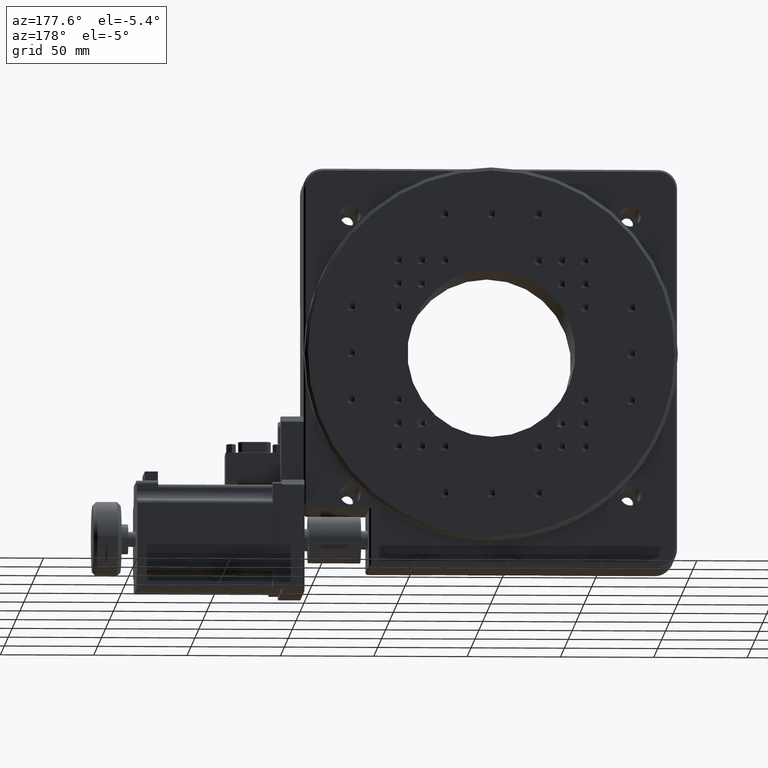
[diagram: clean part render]
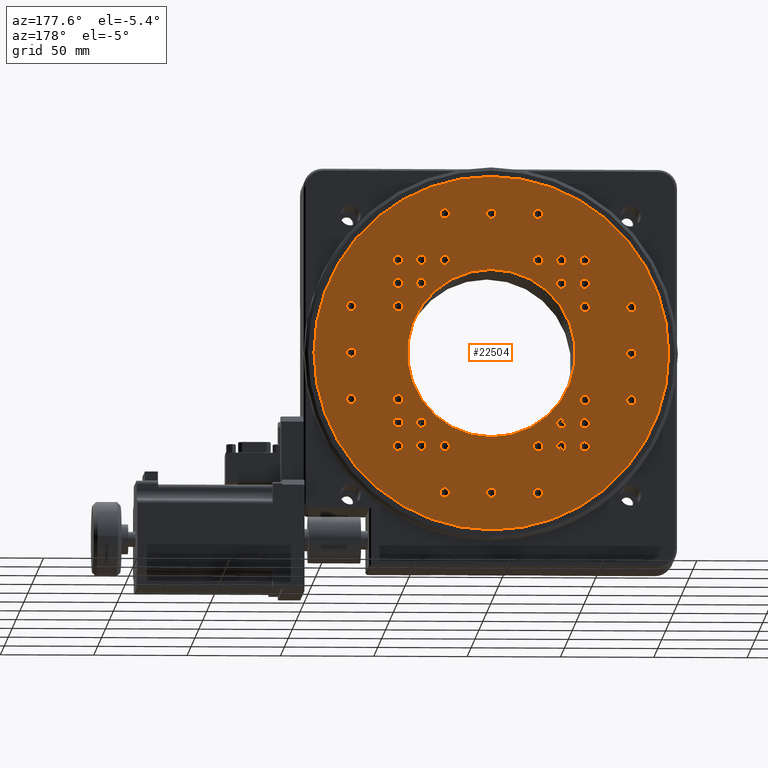
[diagram: same view with one face highlighted and labeled with its STEP entity id]
A machine part, auxiliary view. The second image highlights one B-rep face of the part: STEP entity #22504.
In plain terms, the highlighted planar face has unit normal (-0, 1, -0).
Its self-contained STEP definition (entity closure, byte-faithful):
#27 = VERTEX_POINT ( 'NONE', #10201 ) ;
#114 = FACE_BOUND ( 'NONE', #29979, .T. ) ;
#132 = CARTESIAN_POINT ( 'NONE',  ( 150.0000000000000900, 59.99999999999997200, -150.0000000000000600 ) ) ;
#315 = DIRECTION ( 'NONE',  ( 0.0000000000000000000, 0.0000000000000000000, -1.000000000000000000 ) ) ;
#460 = CARTESIAN_POINT ( 'NONE',  ( 25.00000000000005000, 59.99999999999997200, -75.00000000000007100 ) ) ;
#487 = VERTEX_POINT ( 'NONE', #12632 ) ;
#595 = DIRECTION ( 'NONE',  ( 8.326672684688670400E-017, -1.000000000000000000, 2.048408217643522700E-016 ) ) ;
#694 = FACE_BOUND ( 'NONE', #26537, .T. ) ;
#707 = EDGE_CURVE ( 'NONE', #1870, #5307, #31343, .T. ) ;
#868 = CARTESIAN_POINT ( 'NONE',  ( 137.5000000000000300, 59.99999999999997900, -62.50000000000005700 ) ) ;
#946 = CARTESIAN_POINT ( 'NONE',  ( 75.00000000000004300, 59.99999999999998600, -25.00000000000006400 ) ) ;
#1007 = CARTESIAN_POINT ( 'NONE',  ( 150.0000000000000900, 59.99999999999997200, -127.5000000000000600 ) ) ;
#1073 = EDGE_CURVE ( 'NONE', #18876, #41597, #29513, .T. ) ;
#1112 = DIRECTION ( 'NONE',  ( 0.0000000000000000000, 0.0000000000000000000, -1.000000000000000000 ) ) ;
#1115 = DIRECTION ( 'NONE',  ( 8.326672684688670400E-017, -1.000000000000000000, 2.048408217643522700E-016 ) ) ;
#1179 = DIRECTION ( 'NONE',  ( 0.0000000000000000000, 0.0000000000000000000, -1.000000000000000000 ) ) ;
#1256 = DIRECTION ( 'NONE',  ( 0.0000000000000000000, 0.0000000000000000000, -1.000000000000000000 ) ) ;
#1283 = AXIS2_PLACEMENT_3D ( 'NONE', #48091, #20101, #8062 ) ;
#1315 = DIRECTION ( 'NONE',  ( 0.0000000000000000000, 0.0000000000000000000, -1.000000000000000000 ) ) ;
#1393 = CIRCLE ( 'NONE', #46232, 2.499999999999988500 ) ;
#1416 = VERTEX_POINT ( 'NONE', #12682 ) ;
#1455 = CARTESIAN_POINT ( 'NONE',  ( 75.00000000000004300, 59.99999999999998600, -27.50000000000005300 ) ) ;
#1468 = CARTESIAN_POINT ( 'NONE',  ( 125.0000000000000300, 59.99999999999995700, -175.0000000000000600 ) ) ;
#1561 = CARTESIAN_POINT ( 'NONE',  ( 175.0000000000000600, 59.99999999999997200, -125.0000000000000900 ) ) ;
#1608 = DIRECTION ( 'NONE',  ( 8.326672684688670400E-017, -1.000000000000000000, 2.048408217643522700E-016 ) ) ;
#1707 = ORIENTED_EDGE ( 'NONE', *, *, #15279, .T. ) ;
#1749 = CARTESIAN_POINT ( 'NONE',  ( 62.50000000000005700, 59.99999999999996400, -137.5000000000000600 ) ) ;
#1821 = DIRECTION ( 'NONE',  ( 8.326672684688670400E-017, -1.000000000000000000, 2.048408217643522700E-016 ) ) ;
#1822 = CIRCLE ( 'NONE', #30817, 45.00000000000001400 ) ;
#1847 = CARTESIAN_POINT ( 'NONE',  ( 175.0000000000000600, 59.99999999999997900, -100.0000000000000400 ) ) ;
#1870 = VERTEX_POINT ( 'NONE', #32206 ) ;
#1895 = ORIENTED_EDGE ( 'NONE', *, *, #50249, .T. ) ;
#2007 = ORIENTED_EDGE ( 'NONE', *, *, #40438, .T. ) ;
#2102 = DIRECTION ( 'NONE',  ( 0.0000000000000000000, 0.0000000000000000000, -1.000000000000000000 ) ) ;
#2141 = ORIENTED_EDGE ( 'NONE', *, *, #14230, .T. ) ;
#2194 = EDGE_CURVE ( 'NONE', #14804, #47680, #41267, .T. ) ;
#2316 = VERTEX_POINT ( 'NONE', #20983 ) ;
#2548 = CARTESIAN_POINT ( 'NONE',  ( 50.00000000000002100, 59.99999999999997200, -65.00000000000005700 ) ) ;
#2588 = FACE_BOUND ( 'NONE', #29673, .T. ) ;
#2655 = DIRECTION ( 'NONE',  ( 8.326672684688670400E-017, -1.000000000000000000, 2.048408217643522700E-016 ) ) ;
#2713 = CARTESIAN_POINT ( 'NONE',  ( 137.5000000000000900, 59.99999999999996400, -147.5000000000000900 ) ) ;
#2817 = EDGE_LOOP ( 'NONE', ( #46381, #15376 ) ) ;
#2873 = ORIENTED_EDGE ( 'NONE', *, *, #18021, .T. ) ;
#3032 = EDGE_CURVE ( 'NONE', #32918, #39165, #24908, .T. ) ;
#3070 = DIRECTION ( 'NONE',  ( 8.326672684688670400E-017, -1.000000000000000000, 2.048408217643522700E-016 ) ) ;
#3094 = ORIENTED_EDGE ( 'NONE', *, *, #30990, .T. ) ;
#3100 = AXIS2_PLACEMENT_3D ( 'NONE', #32145, #595, #16226 ) ;
#3190 = EDGE_CURVE ( 'NONE', #49689, #48317, #11137, .T. ) ;
#3206 = VERTEX_POINT ( 'NONE', #18562 ) ;
#3233 = CIRCLE ( 'NONE', #27802, 2.500000000000002200 ) ;
#3295 = DIRECTION ( 'NONE',  ( 0.0000000000000000000, 0.0000000000000000000, -1.000000000000000000 ) ) ;
#3301 = DIRECTION ( 'NONE',  ( 0.0000000000000000000, 0.0000000000000000000, -1.000000000000000000 ) ) ;
#3357 = CARTESIAN_POINT ( 'NONE',  ( 50.00000000000001400, 59.99999999999997200, -50.00000000000005000 ) ) ;
#3516 = CIRCLE ( 'NONE', #35666, 2.500000000000002200 ) ;
#3585 = CARTESIAN_POINT ( 'NONE',  ( 50.00000000000015600, 59.99999999999995700, -150.0000000000000900 ) ) ;
#3642 = AXIS2_PLACEMENT_3D ( 'NONE', #28793, #8355, #4566 ) ;
#3687 = VERTEX_POINT ( 'NONE', #1007 ) ;
#3804 = EDGE_CURVE ( 'NONE', #39165, #32918, #50870, .T. ) ;
#3821 = EDGE_CURVE ( 'NONE', #34266, #17908, #26675, .T. ) ;
#3835 = FACE_BOUND ( 'NONE', #23537, .T. ) ;
#3933 = AXIS2_PLACEMENT_3D ( 'NONE', #28499, #12425, #15908 ) ;
#4110 = ORIENTED_EDGE ( 'NONE', *, *, #47889, .T. ) ;
#4167 = AXIS2_PLACEMENT_3D ( 'NONE', #460, #20426, #48252 ) ;
#4276 = CARTESIAN_POINT ( 'NONE',  ( 137.5000000000000900, 59.99999999999996400, -150.0000000000000600 ) ) ;
#4289 = ORIENTED_EDGE ( 'NONE', *, *, #13362, .T. ) ;
#4309 = CARTESIAN_POINT ( 'NONE',  ( 75.00000000000004300, 59.99999999999997900, -50.00000000000006400 ) ) ;
#4342 = EDGE_LOOP ( 'NONE', ( #41613, #33739 ) ) ;
#4376 = AXIS2_PLACEMENT_3D ( 'NONE', #47507, #23364, #31407 ) ;
#4419 = FACE_BOUND ( 'NONE', #24743, .T. ) ;
#4425 = CARTESIAN_POINT ( 'NONE',  ( 75.00000000000011400, 59.99999999999996400, -150.0000000000000900 ) ) ;
#4564 = VERTEX_POINT ( 'NONE', #43846 ) ;
#4566 = DIRECTION ( 'NONE',  ( 0.0000000000000000000, 0.0000000000000000000, -1.000000000000000000 ) ) ;
#4623 = CIRCLE ( 'NONE', #16437, 2.499999999999988500 ) ;
#4706 = VERTEX_POINT ( 'NONE', #6818 ) ;
#4760 = ORIENTED_EDGE ( 'NONE', *, *, #33659, .T. ) ;
#4931 = CIRCLE ( 'NONE', #27197, 2.500000000000002200 ) ;
#5058 = VERTEX_POINT ( 'NONE', #49157 ) ;
#5123 = ORIENTED_EDGE ( 'NONE', *, *, #2194, .T. ) ;
#5164 = CIRCLE ( 'NONE', #9060, 2.499999999999988500 ) ;
#5307 = VERTEX_POINT ( 'NONE', #45809 ) ;
#5416 = ORIENTED_EDGE ( 'NONE', *, *, #13058, .T. ) ;
#5547 = ORIENTED_EDGE ( 'NONE', *, *, #6528, .T. ) ;
#5561 = CIRCLE ( 'NONE', #45875, 2.500000000000002200 ) ;
#5580 = DIRECTION ( 'NONE',  ( 0.0000000000000000000, 0.0000000000000000000, -1.000000000000000000 ) ) ;
#5880 = AXIS2_PLACEMENT_3D ( 'NONE', #45282, #44942, #40938 ) ;
#5933 = CARTESIAN_POINT ( 'NONE',  ( 50.00000000000002100, 59.99999999999997200, -62.50000000000005700 ) ) ;
#5952 = ORIENTED_EDGE ( 'NONE', *, *, #29107, .T. ) ;
#5954 = AXIS2_PLACEMENT_3D ( 'NONE', #32478, #16372, #24927 ) ;
#6052 = CIRCLE ( 'NONE', #38659, 2.500000000000002200 ) ;
#6065 = CIRCLE ( 'NONE', #29901, 2.499999999999988500 ) ;
#6249 = ORIENTED_EDGE ( 'NONE', *, *, #46469, .T. ) ;
#6474 = VERTEX_POINT ( 'NONE', #8603 ) ;
#6528 = EDGE_CURVE ( 'NONE', #17518, #50133, #49369, .T. ) ;
#6582 = AXIS2_PLACEMENT_3D ( 'NONE', #46650, #30218, #50490 ) ;
#6587 = CARTESIAN_POINT ( 'NONE',  ( 75.00000000000004300, 59.99999999999997900, -47.50000000000007800 ) ) ;
#6588 = DIRECTION ( 'NONE',  ( 8.326672684688670400E-017, -1.000000000000000000, 2.048408217643522700E-016 ) ) ;
#6659 = CIRCLE ( 'NONE', #48434, 2.499999999999988500 ) ;
#6669 = AXIS2_PLACEMENT_3D ( 'NONE', #44723, #45410, #5580 ) ;
#6818 = CARTESIAN_POINT ( 'NONE',  ( 125.0000000000000300, 59.99999999999998600, -27.50000000000003900 ) ) ;
#6820 = VERTEX_POINT ( 'NONE', #18495 ) ;
#6859 = DIRECTION ( 'NONE',  ( 0.0000000000000000000, 0.0000000000000000000, -1.000000000000000000 ) ) ;
#6985 = CARTESIAN_POINT ( 'NONE',  ( 25.00000000000005000, 59.99999999999996400, -100.0000000000000600 ) ) ;
#6989 = ORIENTED_EDGE ( 'NONE', *, *, #49303, .T. ) ;
#7106 = EDGE_LOOP ( 'NONE', ( #50989, #49406 ) ) ;
#7109 = CARTESIAN_POINT ( 'NONE',  ( 62.50000000000002800, 59.99999999999997900, -47.50000000000006400 ) ) ;
#7114 = CARTESIAN_POINT ( 'NONE',  ( 62.50000000000002800, 59.99999999999997900, -50.00000000000005000 ) ) ;
#7152 = AXIS2_PLACEMENT_3D ( 'NONE', #34054, #1821, #30054 ) ;
#7173 = DIRECTION ( 'NONE',  ( 8.326672684688670400E-017, -1.000000000000000000, 2.048408217643522700E-016 ) ) ;
#7349 = DIRECTION ( 'NONE',  ( 8.326672684688670400E-017, -1.000000000000000000, 2.048408217643522700E-016 ) ) ;
#7390 = ORIENTED_EDGE ( 'NONE', *, *, #12680, .T. ) ;
#7410 = CARTESIAN_POINT ( 'NONE',  ( 137.5000000000000300, 59.99999999999997900, -50.00000000000005000 ) ) ;
#7419 = AXIS2_PLACEMENT_3D ( 'NONE', #12890, #32131, #40232 ) ;
#7458 = VERTEX_POINT ( 'NONE', #28399 ) ;
#7653 = DIRECTION ( 'NONE',  ( 2.340531700754225500E-016, -2.048408217643522400E-016, -1.000000000000000000 ) ) ;
#7738 = ORIENTED_EDGE ( 'NONE', *, *, #19357, .T. ) ;
#8062 = DIRECTION ( 'NONE',  ( 0.0000000000000000000, 0.0000000000000000000, -1.000000000000000000 ) ) ;
#8102 = VERTEX_POINT ( 'NONE', #40987 ) ;
#8125 = FACE_BOUND ( 'NONE', #13989, .T. ) ;
#8199 = ORIENTED_EDGE ( 'NONE', *, *, #49104, .T. ) ;
#8274 = VERTEX_POINT ( 'NONE', #2713 ) ;
#8299 = AXIS2_PLACEMENT_3D ( 'NONE', #32196, #40112, #28160 ) ;
#8355 = DIRECTION ( 'NONE',  ( 8.326672684688670400E-017, -1.000000000000000000, 2.048408217643522700E-016 ) ) ;
#8375 = CARTESIAN_POINT ( 'NONE',  ( 25.00000000000005000, 59.99999999999997200, -75.00000000000007100 ) ) ;
#8603 = CARTESIAN_POINT ( 'NONE',  ( 62.50000000000005700, 59.99999999999996400, -140.0000000000000600 ) ) ;
#8631 = VERTEX_POINT ( 'NONE', #1455 ) ;
#8662 = DIRECTION ( 'NONE',  ( 0.0000000000000000000, 0.0000000000000000000, -1.000000000000000000 ) ) ;
#8722 = EDGE_CURVE ( 'NONE', #20731, #35275, #17965, .T. ) ;
#8724 = EDGE_LOOP ( 'NONE', ( #6989, #37477 ) ) ;
#8854 = AXIS2_PLACEMENT_3D ( 'NONE', #24420, #28100, #40070 ) ;
#8864 = AXIS2_PLACEMENT_3D ( 'NONE', #22617, #14428, #42087 ) ;
#8946 = CARTESIAN_POINT ( 'NONE',  ( 125.0000000000000600, 59.99999999999997900, -50.00000000000005000 ) ) ;
#8996 = CARTESIAN_POINT ( 'NONE',  ( 50.00000000000002100, 59.99999999999997200, -77.50000000000005700 ) ) ;
#9060 = AXIS2_PLACEMENT_3D ( 'NONE', #8946, #12933, #44596 ) ;
#9082 = DIRECTION ( 'NONE',  ( 0.0000000000000000000, 0.0000000000000000000, -1.000000000000000000 ) ) ;
#9217 = DIRECTION ( 'NONE',  ( 0.0000000000000000000, 0.0000000000000000000, -1.000000000000000000 ) ) ;
#9274 = CARTESIAN_POINT ( 'NONE',  ( 100.0000000000000700, 59.99999999999995700, -172.5000000000000300 ) ) ;
#9554 = CARTESIAN_POINT ( 'NONE',  ( 125.0000000000000300, 59.99999999999998600, -22.50000000000006000 ) ) ;
#9726 = EDGE_CURVE ( 'NONE', #42272, #8102, #33439, .T. ) ;
#9994 = FACE_BOUND ( 'NONE', #19949, .T. ) ;
#10027 = DIRECTION ( 'NONE',  ( 0.0000000000000000000, 0.0000000000000000000, -1.000000000000000000 ) ) ;
#10111 = DIRECTION ( 'NONE',  ( 0.0000000000000000000, 0.0000000000000000000, -1.000000000000000000 ) ) ;
#10201 = CARTESIAN_POINT ( 'NONE',  ( 175.0000000000000600, 59.99999999999997900, -102.5000000000000300 ) ) ;
#10578 = ORIENTED_EDGE ( 'NONE', *, *, #45013, .T. ) ;
#10601 = CARTESIAN_POINT ( 'NONE',  ( 150.0000000000000900, 59.99999999999997200, -137.5000000000000300 ) ) ;
#10630 = CIRCLE ( 'NONE', #32352, 2.499999999999988500 ) ;
#10650 = FACE_BOUND ( 'NONE', #2817, .T. ) ;
#10668 = DIRECTION ( 'NONE',  ( 0.0000000000000000000, 0.0000000000000000000, -1.000000000000000000 ) ) ;
#10706 = DIRECTION ( 'NONE',  ( 0.0000000000000000000, 0.0000000000000000000, -1.000000000000000000 ) ) ;
#10736 = AXIS2_PLACEMENT_3D ( 'NONE', #1847, #48809, #1179 ) ;
#10897 = AXIS2_PLACEMENT_3D ( 'NONE', #39121, #35200, #14952 ) ;
#11014 = DIRECTION ( 'NONE',  ( 0.0000000000000000000, 0.0000000000000000000, -1.000000000000000000 ) ) ;
#11137 = CIRCLE ( 'NONE', #14638, 2.499999999999988500 ) ;
#11166 = VERTEX_POINT ( 'NONE', #44445 ) ;
#11169 = ORIENTED_EDGE ( 'NONE', *, *, #50645, .T. ) ;
#11244 = FACE_BOUND ( 'NONE', #8724, .T. ) ;
#11341 = CIRCLE ( 'NONE', #19066, 2.500000000000002200 ) ;
#11423 = DIRECTION ( 'NONE',  ( 0.0000000000000000000, 0.0000000000000000000, -1.000000000000000000 ) ) ;
#11432 = AXIS2_PLACEMENT_3D ( 'NONE', #30809, #38916, #50390 ) ;
#11528 = CARTESIAN_POINT ( 'NONE',  ( 62.50000000000004300, 59.99999999999997900, -60.00000000000006400 ) ) ;
#11707 = ORIENTED_EDGE ( 'NONE', *, *, #29997, .T. ) ;
#11755 = EDGE_CURVE ( 'NONE', #8631, #16365, #6659, .T. ) ;
#11875 = FACE_BOUND ( 'NONE', #26963, .T. ) ;
#11950 = CARTESIAN_POINT ( 'NONE',  ( 75.00000000000011400, 59.99999999999996400, -147.5000000000000900 ) ) ;
#12234 = DIRECTION ( 'NONE',  ( 0.0000000000000000000, 0.0000000000000000000, -1.000000000000000000 ) ) ;
#12314 = AXIS2_PLACEMENT_3D ( 'NONE', #6985, #46794, #19664 ) ;
#12329 = EDGE_LOOP ( 'NONE', ( #25077, #24467 ) ) ;
#12424 = CIRCLE ( 'NONE', #51379, 2.500000000000002200 ) ;
#12425 = DIRECTION ( 'NONE',  ( 8.326672684688670400E-017, -1.000000000000000000, 2.048408217643522700E-016 ) ) ;
#12481 = DIRECTION ( 'NONE',  ( 0.0000000000000000000, 0.0000000000000000000, -1.000000000000000000 ) ) ;
#12511 = AXIS2_PLACEMENT_3D ( 'NONE', #28736, #21008, #8662 ) ;
#12600 = AXIS2_PLACEMENT_3D ( 'NONE', #4425, #48240, #12234 ) ;
#12632 = CARTESIAN_POINT ( 'NONE',  ( 75.00000000000007100, 59.99999999999995700, -177.5000000000000600 ) ) ;
#12633 = CARTESIAN_POINT ( 'NONE',  ( 62.50000000000016300, 59.99999999999996400, -152.5000000000000900 ) ) ;
#12647 = DIRECTION ( 'NONE',  ( 8.326672684688670400E-017, -1.000000000000000000, 2.048408217643522700E-016 ) ) ;
#12674 = ORIENTED_EDGE ( 'NONE', *, *, #29730, .T. ) ;
#12680 = EDGE_CURVE ( 'NONE', #39328, #20410, #24494, .T. ) ;
#12682 = CARTESIAN_POINT ( 'NONE',  ( 150.0000000000000600, 59.99999999999998600, -65.00000000000005700 ) ) ;
#12694 = ORIENTED_EDGE ( 'NONE', *, *, #41345, .T. ) ;
#12887 = DIRECTION ( 'NONE',  ( 0.0000000000000000000, 0.0000000000000000000, -1.000000000000000000 ) ) ;
#12890 = CARTESIAN_POINT ( 'NONE',  ( 75.00000000000004300, 59.99999999999998600, -25.00000000000006400 ) ) ;
#12911 = ORIENTED_EDGE ( 'NONE', *, *, #43636, .T. ) ;
#12933 = DIRECTION ( 'NONE',  ( 8.326672684688670400E-017, -1.000000000000000000, 2.048408217643522700E-016 ) ) ;
#13032 = EDGE_LOOP ( 'NONE', ( #45474, #18529 ) ) ;
#13058 = EDGE_CURVE ( 'NONE', #28069, #35577, #41062, .T. ) ;
#13130 = FACE_BOUND ( 'NONE', #36166, .T. ) ;
#13232 = CARTESIAN_POINT ( 'NONE',  ( 75.00000000000011400, 59.99999999999996400, -152.5000000000000900 ) ) ;
#13362 = EDGE_CURVE ( 'NONE', #16178, #35660, #23551, .T. ) ;
#13367 = CARTESIAN_POINT ( 'NONE',  ( 62.50000000000004300, 59.99999999999997900, -62.50000000000005700 ) ) ;
#13717 = DIRECTION ( 'NONE',  ( 8.326672684688670400E-017, -1.000000000000000000, 2.048408217643522700E-016 ) ) ;
#13812 = AXIS2_PLACEMENT_3D ( 'NONE', #33630, #13717, #41564 ) ;
#13850 = DIRECTION ( 'NONE',  ( 8.326672684688670400E-017, -1.000000000000000000, 2.048408217643522700E-016 ) ) ;
#13922 = AXIS2_PLACEMENT_3D ( 'NONE', #41773, #2655, #46461 ) ;
#13989 = EDGE_LOOP ( 'NONE', ( #46768, #19293 ) ) ;
#13992 = VERTEX_POINT ( 'NONE', #38529 ) ;
#14054 = CIRCLE ( 'NONE', #35240, 2.499999999999988500 ) ;
#14190 = DIRECTION ( 'NONE',  ( 8.326672684688670400E-017, -1.000000000000000000, 2.048408217643522700E-016 ) ) ;
#14230 = EDGE_CURVE ( 'NONE', #44208, #30179, #30896, .T. ) ;
#14238 = CARTESIAN_POINT ( 'NONE',  ( 25.00000000000005000, 59.99999999999996400, -102.5000000000000600 ) ) ;
#14275 = VERTEX_POINT ( 'NONE', #47896 ) ;
#14299 = CARTESIAN_POINT ( 'NONE',  ( 25.00000000000005000, 59.99999999999997200, -77.50000000000007100 ) ) ;
#14337 = VERTEX_POINT ( 'NONE', #9274 ) ;
#14377 = CARTESIAN_POINT ( 'NONE',  ( 50.00000000000001400, 59.99999999999997200, -50.00000000000005000 ) ) ;
#14388 = FACE_BOUND ( 'NONE', #32138, .T. ) ;
#14428 = DIRECTION ( 'NONE',  ( 8.326672684688670400E-017, -1.000000000000000000, 2.048408217643522700E-016 ) ) ;
#14533 = CIRCLE ( 'NONE', #41558, 2.499999999999988500 ) ;
#14553 = CIRCLE ( 'NONE', #50979, 2.499999999999974200 ) ;
#14619 = ORIENTED_EDGE ( 'NONE', *, *, #3190, .T. ) ;
#14632 = DIRECTION ( 'NONE',  ( 0.0000000000000000000, 0.0000000000000000000, -1.000000000000000000 ) ) ;
#14638 = AXIS2_PLACEMENT_3D ( 'NONE', #15270, #51091, #11423 ) ;
#14804 = VERTEX_POINT ( 'NONE', #36874 ) ;
#14810 = AXIS2_PLACEMENT_3D ( 'NONE', #48567, #1115, #12887 ) ;
#14859 = CARTESIAN_POINT ( 'NONE',  ( 125.0000000000001100, 59.99999999999996400, -150.0000000000000600 ) ) ;
#14952 = DIRECTION ( 'NONE',  ( 0.0000000000000000000, 0.0000000000000000000, -1.000000000000000000 ) ) ;
#14988 = FACE_BOUND ( 'NONE', #18062, .T. ) ;
#14998 = DIRECTION ( 'NONE',  ( 0.0000000000000000000, 0.0000000000000000000, -1.000000000000000000 ) ) ;
#15013 = CIRCLE ( 'NONE', #29320, 2.500000000000002200 ) ;
#15062 = ORIENTED_EDGE ( 'NONE', *, *, #3821, .T. ) ;
#15194 = DIRECTION ( 'NONE',  ( 0.0000000000000000000, 0.0000000000000000000, -1.000000000000000000 ) ) ;
#15270 = CARTESIAN_POINT ( 'NONE',  ( 125.0000000000000600, 59.99999999999997900, -50.00000000000005000 ) ) ;
#15279 = EDGE_CURVE ( 'NONE', #48317, #49689, #5164, .T. ) ;
#15376 = ORIENTED_EDGE ( 'NONE', *, *, #1073, .T. ) ;
#15838 = CARTESIAN_POINT ( 'NONE',  ( 125.0000000000000300, 59.99999999999998600, -25.00000000000005000 ) ) ;
#15882 = DIRECTION ( 'NONE',  ( 0.0000000000000000000, 0.0000000000000000000, -1.000000000000000000 ) ) ;
#15883 = EDGE_CURVE ( 'NONE', #6474, #31154, #29962, .T. ) ;
#15908 = DIRECTION ( 'NONE',  ( 0.0000000000000000000, 0.0000000000000000000, -1.000000000000000000 ) ) ;
#16178 = VERTEX_POINT ( 'NONE', #19283 ) ;
#16214 = DIRECTION ( 'NONE',  ( 0.0000000000000000000, 0.0000000000000000000, -1.000000000000000000 ) ) ;
#16226 = DIRECTION ( 'NONE',  ( 0.0000000000000000000, 0.0000000000000000000, -1.000000000000000000 ) ) ;
#16365 = VERTEX_POINT ( 'NONE', #25207 ) ;
#16369 = CARTESIAN_POINT ( 'NONE',  ( 150.0000000000000900, 59.99999999999997200, -147.5000000000000900 ) ) ;
#16372 = DIRECTION ( 'NONE',  ( 8.326672684688670400E-017, -1.000000000000000000, 2.048408217643522700E-016 ) ) ;
#16430 = DIRECTION ( 'NONE',  ( 8.326672684688670400E-017, -1.000000000000000000, 2.048408217643522700E-016 ) ) ;
#16437 = AXIS2_PLACEMENT_3D ( 'NONE', #15838, #47681, #24030 ) ;
#16447 = EDGE_LOOP ( 'NONE', ( #26996, #44947 ) ) ;
#16537 = DIRECTION ( 'NONE',  ( 3.083952846180989300E-016, -1.541976423090494600E-016, -1.000000000000000000 ) ) ;
#16740 = VERTEX_POINT ( 'NONE', #28325 ) ;
#16744 = CIRCLE ( 'NONE', #35677, 2.499999999999974200 ) ;
#16922 = EDGE_CURVE ( 'NONE', #11166, #39212, #28455, .T. ) ;
#17064 = CARTESIAN_POINT ( 'NONE',  ( 50.00000000000014900, 59.99999999999995700, -125.0000000000000900 ) ) ;
#17127 = CARTESIAN_POINT ( 'NONE',  ( 25.00000000000005000, 59.99999999999997200, -72.50000000000007100 ) ) ;
#17128 = VERTEX_POINT ( 'NONE', #19171 ) ;
#17248 = DIRECTION ( 'NONE',  ( 0.0000000000000000000, 0.0000000000000000000, -1.000000000000000000 ) ) ;
#17353 = DIRECTION ( 'NONE',  ( 8.326672684688670400E-017, -1.000000000000000000, 2.048408217643522700E-016 ) ) ;
#17518 = VERTEX_POINT ( 'NONE', #43792 ) ;
#17581 = CIRCLE ( 'NONE', #18398, 2.500000000000002200 ) ;
#17674 = CARTESIAN_POINT ( 'NONE',  ( 75.00000000000007100, 59.99999999999995700, -175.0000000000000600 ) ) ;
#17783 = CIRCLE ( 'NONE', #8854, 2.500000000000002200 ) ;
#17852 = VERTEX_POINT ( 'NONE', #22715 ) ;
#17908 = VERTEX_POINT ( 'NONE', #19034 ) ;
#17965 = CIRCLE ( 'NONE', #13922, 2.499999999999988500 ) ;
#17966 = DIRECTION ( 'NONE',  ( 0.0000000000000000000, 0.0000000000000000000, -1.000000000000000000 ) ) ;
#18002 = VERTEX_POINT ( 'NONE', #23908 ) ;
#18021 = EDGE_CURVE ( 'NONE', #35577, #28069, #15013, .T. ) ;
#18062 = EDGE_LOOP ( 'NONE', ( #28728, #5952 ) ) ;
#18398 = AXIS2_PLACEMENT_3D ( 'NONE', #29859, #26327, #10111 ) ;
#18441 = CIRCLE ( 'NONE', #24672, 2.500000000000002200 ) ;
#18495 = CARTESIAN_POINT ( 'NONE',  ( 137.5000000000000300, 59.99999999999997900, -65.00000000000005700 ) ) ;
#18529 = ORIENTED_EDGE ( 'NONE', *, *, #45280, .T. ) ;
#18562 = CARTESIAN_POINT ( 'NONE',  ( 150.0000000000000900, 59.99999999999997200, -135.0000000000000300 ) ) ;
#18716 = EDGE_LOOP ( 'NONE', ( #20064, #50250 ) ) ;
#18758 = VERTEX_POINT ( 'NONE', #9554 ) ;
#18837 = ORIENTED_EDGE ( 'NONE', *, *, #45479, .T. ) ;
#18858 = AXIS2_PLACEMENT_3D ( 'NONE', #14377, #26429, #46231 ) ;
#18876 = VERTEX_POINT ( 'NONE', #33618 ) ;
#19034 = CARTESIAN_POINT ( 'NONE',  ( 150.0000000000000600, 59.99999999999998600, -77.50000000000002800 ) ) ;
#19066 = AXIS2_PLACEMENT_3D ( 'NONE', #42532, #38690, #6859 ) ;
#19109 = CARTESIAN_POINT ( 'NONE',  ( 175.0000000000000600, 59.99999999999998600, -77.50000000000004300 ) ) ;
#19159 = ORIENTED_EDGE ( 'NONE', *, *, #38465, .T. ) ;
#19171 = CARTESIAN_POINT ( 'NONE',  ( 25.00000000000005000, 59.99999999999995700, -122.5000000000001100 ) ) ;
#19283 = CARTESIAN_POINT ( 'NONE',  ( 50.00000000000002100, 59.99999999999997200, -60.00000000000005700 ) ) ;
#19293 = ORIENTED_EDGE ( 'NONE', *, *, #27910, .T. ) ;
#19357 = EDGE_CURVE ( 'NONE', #33206, #3687, #31325, .T. ) ;
#19400 = EDGE_CURVE ( 'NONE', #35275, #20731, #1393, .T. ) ;
#19546 = VERTEX_POINT ( 'NONE', #32157 ) ;
#19664 = DIRECTION ( 'NONE',  ( 0.0000000000000000000, 0.0000000000000000000, -1.000000000000000000 ) ) ;
#19772 = CIRCLE ( 'NONE', #11432, 2.499999999999988500 ) ;
#19863 = EDGE_LOOP ( 'NONE', ( #6249, #34280 ) ) ;
#19900 = DIRECTION ( 'NONE',  ( 0.0000000000000000000, 0.0000000000000000000, -1.000000000000000000 ) ) ;
#19949 = EDGE_LOOP ( 'NONE', ( #1707, #14619 ) ) ;
#20054 = DIRECTION ( 'NONE',  ( 0.0000000000000000000, 0.0000000000000000000, -1.000000000000000000 ) ) ;
#20064 = ORIENTED_EDGE ( 'NONE', *, *, #19400, .T. ) ;
#20101 = DIRECTION ( 'NONE',  ( 8.326672684688670400E-017, -1.000000000000000000, 2.048408217643522700E-016 ) ) ;
#20266 = VERTEX_POINT ( 'NONE', #11528 ) ;
#20410 = VERTEX_POINT ( 'NONE', #40929 ) ;
#20426 = DIRECTION ( 'NONE',  ( 8.326672684688670400E-017, -1.000000000000000000, 2.048408217643522700E-016 ) ) ;
#20433 = DIRECTION ( 'NONE',  ( 0.0000000000000000000, 0.0000000000000000000, -1.000000000000000000 ) ) ;
#20455 = ORIENTED_EDGE ( 'NONE', *, *, #26541, .T. ) ;
#20576 = CARTESIAN_POINT ( 'NONE',  ( 75.00000000000007100, 59.99999999999995700, -175.0000000000000600 ) ) ;
#20727 = EDGE_LOOP ( 'NONE', ( #38049, #15062 ) ) ;
#20731 = VERTEX_POINT ( 'NONE', #50446 ) ;
#20776 = CARTESIAN_POINT ( 'NONE',  ( 50.00000000000014900, 59.99999999999995700, -137.5000000000000600 ) ) ;
#20896 = EDGE_LOOP ( 'NONE', ( #3094, #46260 ) ) ;
#20983 = CARTESIAN_POINT ( 'NONE',  ( 50.00000000000014900, 59.99999999999995700, -127.5000000000000900 ) ) ;
#21008 = DIRECTION ( 'NONE',  ( 8.326672684688670400E-017, -1.000000000000000000, 2.048408217643522700E-016 ) ) ;
#21081 = CIRCLE ( 'NONE', #26191, 2.499999999999988500 ) ;
#21220 = DIRECTION ( 'NONE',  ( 8.326672684688670400E-017, -1.000000000000000000, 2.048408217643522700E-016 ) ) ;
#21241 = FACE_BOUND ( 'NONE', #34292, .T. ) ;
#21390 = ORIENTED_EDGE ( 'NONE', *, *, #32616, .T. ) ;
#21438 = CARTESIAN_POINT ( 'NONE',  ( 125.0000000000000300, 59.99999999999995700, -177.5000000000000600 ) ) ;
#21478 = EDGE_CURVE ( 'NONE', #17128, #17852, #40818, .T. ) ;
#21504 = AXIS2_PLACEMENT_3D ( 'NONE', #51173, #23382, #51339 ) ;
#21553 = DIRECTION ( 'NONE',  ( 0.0000000000000000000, 0.0000000000000000000, -1.000000000000000000 ) ) ;
#21653 = CARTESIAN_POINT ( 'NONE',  ( 100.0000000000000900, 59.99999999999995000, -195.0000000000000600 ) ) ;
#21705 = DIRECTION ( 'NONE',  ( 8.326672684688670400E-017, -1.000000000000000000, 2.048408217643522700E-016 ) ) ;
#21785 = EDGE_CURVE ( 'NONE', #34309, #14275, #41953, .T. ) ;
#21830 = ORIENTED_EDGE ( 'NONE', *, *, #50427, .T. ) ;
#21845 = FACE_BOUND ( 'NONE', #42322, .T. ) ;
#21908 = CARTESIAN_POINT ( 'NONE',  ( 75.00000000000004300, 59.99999999999997900, -50.00000000000006400 ) ) ;
#21957 = EDGE_CURVE ( 'NONE', #41597, #18876, #17581, .T. ) ;
#22106 = CARTESIAN_POINT ( 'NONE',  ( 137.5000000000000300, 59.99999999999997900, -47.50000000000006400 ) ) ;
#22198 = AXIS2_PLACEMENT_3D ( 'NONE', #1561, #17353, #37236 ) ;
#22309 = DIRECTION ( 'NONE',  ( 8.326672684688670400E-017, -1.000000000000000000, 2.048408217643522700E-016 ) ) ;
#22344 = DIRECTION ( 'NONE',  ( 8.326672684688670400E-017, -1.000000000000000000, 2.048408217643522700E-016 ) ) ;
#22390 = EDGE_CURVE ( 'NONE', #2316, #37903, #3233, .T. ) ;
#22401 = CARTESIAN_POINT ( 'NONE',  ( 75.00000000000007100, 59.99999999999995700, -172.5000000000000300 ) ) ;
#22495 = FACE_BOUND ( 'NONE', #20896, .T. ) ;
#22504 = ADVANCED_FACE ( 'NONE', ( #42411, #114, #2588, #34969, #22495, #30636, #13130, #14388, #40508, #47981, #51072, #35622, #31894, #50482, #39911, #23088, #32507, #21241, #9994, #11875, #43012, #36203, #694, #44900, #44239, #21845, #34393, #28117, #4419, #10650, #8125, #23740, #25006, #3835, #33738, #11244, #14988, #41163 ), #23160, .T. ) ;
#22523 = DIRECTION ( 'NONE',  ( 8.326672684688670400E-017, -1.000000000000000000, 2.048408217643522700E-016 ) ) ;
#22607 = CARTESIAN_POINT ( 'NONE',  ( 175.0000000000000600, 59.99999999999997900, -97.50000000000004300 ) ) ;
#22617 = CARTESIAN_POINT ( 'NONE',  ( 62.50000000000016300, 59.99999999999996400, -150.0000000000000900 ) ) ;
#22715 = CARTESIAN_POINT ( 'NONE',  ( 25.00000000000005000, 59.99999999999995700, -127.5000000000001100 ) ) ;
#22796 = AXIS2_PLACEMENT_3D ( 'NONE', #3357, #7173, #38648 ) ;
#23088 = FACE_BOUND ( 'NONE', #24536, .T. ) ;
#23113 = CARTESIAN_POINT ( 'NONE',  ( 50.00000000000001400, 59.99999999999997200, -47.50000000000006400 ) ) ;
#23128 = CIRCLE ( 'NONE', #37484, 2.500000000000002200 ) ;
#23160 = PLANE ( 'NONE',  #49093 ) ;
#23218 = AXIS2_PLACEMENT_3D ( 'NONE', #38715, #30604, #10706 ) ;
#23364 = DIRECTION ( 'NONE',  ( 8.326672684688670400E-017, -1.000000000000000000, 2.048408217643522700E-016 ) ) ;
#23382 = DIRECTION ( 'NONE',  ( 8.326672684688670400E-017, -1.000000000000000000, 2.048408217643522700E-016 ) ) ;
#23537 = EDGE_LOOP ( 'NONE', ( #2873, #5416 ) ) ;
#23551 = CIRCLE ( 'NONE', #23902, 2.500000000000002200 ) ;
#23641 = DIRECTION ( 'NONE',  ( 8.326672684688670400E-017, -1.000000000000000000, 2.048408217643522700E-016 ) ) ;
#23674 = EDGE_LOOP ( 'NONE', ( #39079, #25949 ) ) ;
#23738 = EDGE_CURVE ( 'NONE', #35660, #16178, #17783, .T. ) ;
#23740 = FACE_BOUND ( 'NONE', #36390, .T. ) ;
#23754 = VERTEX_POINT ( 'NONE', #48054 ) ;
#23839 = CARTESIAN_POINT ( 'NONE',  ( 50.00000000000014900, 59.99999999999995700, -122.5000000000001000 ) ) ;
#23902 = AXIS2_PLACEMENT_3D ( 'NONE', #5933, #33813, #2102 ) ;
#23908 = CARTESIAN_POINT ( 'NONE',  ( 125.0000000000001100, 59.99999999999996400, -147.5000000000000900 ) ) ;
#23934 = EDGE_LOOP ( 'NONE', ( #7390, #21830 ) ) ;
#24030 = DIRECTION ( 'NONE',  ( 0.0000000000000000000, 0.0000000000000000000, -1.000000000000000000 ) ) ;
#24420 = CARTESIAN_POINT ( 'NONE',  ( 50.00000000000002100, 59.99999999999997200, -62.50000000000005700 ) ) ;
#24454 = EDGE_CURVE ( 'NONE', #47680, #14804, #14533, .T. ) ;
#24464 = DIRECTION ( 'NONE',  ( 8.326672684688670400E-017, -1.000000000000000000, 2.048408217643522700E-016 ) ) ;
#24467 = ORIENTED_EDGE ( 'NONE', *, *, #44707, .T. ) ;
#24470 = CARTESIAN_POINT ( 'NONE',  ( 25.00000000000005000, 59.99999999999995700, -125.0000000000001100 ) ) ;
#24494 = CIRCLE ( 'NONE', #50171, 95.00000000000000000 ) ;
#24536 = EDGE_LOOP ( 'NONE', ( #5123, #33374 ) ) ;
#24551 = CIRCLE ( 'NONE', #6582, 45.00000000000001400 ) ;
#24672 = AXIS2_PLACEMENT_3D ( 'NONE', #49517, #21705, #10027 ) ;
#24743 = EDGE_LOOP ( 'NONE', ( #30222, #37182 ) ) ;
#24860 = AXIS2_PLACEMENT_3D ( 'NONE', #3585, #43725, #19900 ) ;
#24908 = CIRCLE ( 'NONE', #47637, 2.500000000000002200 ) ;
#24927 = DIRECTION ( 'NONE',  ( 0.0000000000000000000, 0.0000000000000000000, -1.000000000000000000 ) ) ;
#24930 = EDGE_LOOP ( 'NONE', ( #20455, #49653 ) ) ;
#24977 = VERTEX_POINT ( 'NONE', #22401 ) ;
#25006 = FACE_BOUND ( 'NONE', #23674, .T. ) ;
#25077 = ORIENTED_EDGE ( 'NONE', *, *, #15883, .T. ) ;
#25207 = CARTESIAN_POINT ( 'NONE',  ( 75.00000000000004300, 59.99999999999998600, -22.50000000000007500 ) ) ;
#25254 = CARTESIAN_POINT ( 'NONE',  ( 150.0000000000000300, 59.99999999999998600, -52.50000000000003600 ) ) ;
#25460 = VERTEX_POINT ( 'NONE', #29727 ) ;
#25567 = VERTEX_POINT ( 'NONE', #16369 ) ;
#25739 = VERTEX_POINT ( 'NONE', #33484 ) ;
#25746 = EDGE_LOOP ( 'NONE', ( #8199, #21390 ) ) ;
#25773 = CIRCLE ( 'NONE', #14810, 2.500000000000002200 ) ;
#25777 = EDGE_LOOP ( 'NONE', ( #5547, #43396 ) ) ;
#25849 = CARTESIAN_POINT ( 'NONE',  ( 25.00000000000005000, 59.99999999999995700, -125.0000000000001100 ) ) ;
#25949 = ORIENTED_EDGE ( 'NONE', *, *, #48428, .T. ) ;
#26124 = EDGE_CURVE ( 'NONE', #6820, #32829, #12424, .T. ) ;
#26188 = ORIENTED_EDGE ( 'NONE', *, *, #47522, .T. ) ;
#26191 = AXIS2_PLACEMENT_3D ( 'NONE', #7410, #24464, #17966 ) ;
#26327 = DIRECTION ( 'NONE',  ( 8.326672684688670400E-017, -1.000000000000000000, 2.048408217643522700E-016 ) ) ;
#26349 = EDGE_LOOP ( 'NONE', ( #46307, #18837 ) ) ;
#26370 = DIRECTION ( 'NONE',  ( 8.326672684688670400E-017, -1.000000000000000000, 2.048408217643522700E-016 ) ) ;
#26429 = DIRECTION ( 'NONE',  ( 8.326672684688670400E-017, -1.000000000000000000, 2.048408217643522700E-016 ) ) ;
#26497 = CARTESIAN_POINT ( 'NONE',  ( 175.0000000000000600, 59.99999999999998600, -72.50000000000004300 ) ) ;
#26537 = EDGE_LOOP ( 'NONE', ( #26188, #43375 ) ) ;
#26541 = EDGE_CURVE ( 'NONE', #25739, #47999, #1822, .T. ) ;
#26558 = VERTEX_POINT ( 'NONE', #32287 ) ;
#26675 = CIRCLE ( 'NONE', #21504, 2.499999999999988500 ) ;
#26748 = AXIS2_PLACEMENT_3D ( 'NONE', #41434, #1608, #9082 ) ;
#26787 = DIRECTION ( 'NONE',  ( 8.326672684688670400E-017, -1.000000000000000000, 2.048408217643522700E-016 ) ) ;
#26894 = ORIENTED_EDGE ( 'NONE', *, *, #9726, .T. ) ;
#26929 = CARTESIAN_POINT ( 'NONE',  ( 150.0000000000000300, 59.99999999999998600, -50.00000000000004300 ) ) ;
#26963 = EDGE_LOOP ( 'NONE', ( #36328, #4760 ) ) ;
#26996 = ORIENTED_EDGE ( 'NONE', *, *, #22390, .T. ) ;
#27197 = AXIS2_PLACEMENT_3D ( 'NONE', #33477, #33143, #41247 ) ;
#27236 = EDGE_CURVE ( 'NONE', #42240, #25567, #48279, .T. ) ;
#27398 = EDGE_CURVE ( 'NONE', #47082, #42582, #34666, .T. ) ;
#27671 = CIRCLE ( 'NONE', #18858, 2.499999999999988500 ) ;
#27747 = CARTESIAN_POINT ( 'NONE',  ( 75.00000000000011400, 59.99999999999996400, -150.0000000000000900 ) ) ;
#27802 = AXIS2_PLACEMENT_3D ( 'NONE', #41457, #38468, #14632 ) ;
#27828 = CARTESIAN_POINT ( 'NONE',  ( 150.0000000000000600, 59.99999999999998600, -75.00000000000004300 ) ) ;
#27910 = EDGE_CURVE ( 'NONE', #39212, #11166, #25773, .T. ) ;
#28069 = VERTEX_POINT ( 'NONE', #26497 ) ;
#28100 = DIRECTION ( 'NONE',  ( 8.326672684688670400E-017, -1.000000000000000000, 2.048408217643522700E-016 ) ) ;
#28117 = FACE_BOUND ( 'NONE', #19863, .T. ) ;
#28160 = DIRECTION ( 'NONE',  ( 0.0000000000000000000, 0.0000000000000000000, -1.000000000000000000 ) ) ;
#28325 = CARTESIAN_POINT ( 'NONE',  ( 137.5000000000000900, 59.99999999999996400, -152.5000000000000300 ) ) ;
#28399 = CARTESIAN_POINT ( 'NONE',  ( 50.00000000000001400, 59.99999999999997200, -52.50000000000004300 ) ) ;
#28455 = CIRCLE ( 'NONE', #7152, 2.500000000000002200 ) ;
#28499 = CARTESIAN_POINT ( 'NONE',  ( 100.0000000000000300, 59.99999999999998600, -25.00000000000006400 ) ) ;
#28502 = CARTESIAN_POINT ( 'NONE',  ( 175.0000000000000600, 59.99999999999997200, -127.5000000000000900 ) ) ;
#28575 = AXIS2_PLACEMENT_3D ( 'NONE', #17064, #37127, #36955 ) ;
#28704 = DIRECTION ( 'NONE',  ( 8.326672684688670400E-017, -1.000000000000000000, 2.048408217643522700E-016 ) ) ;
#28728 = ORIENTED_EDGE ( 'NONE', *, *, #707, .T. ) ;
#28736 = CARTESIAN_POINT ( 'NONE',  ( 150.0000000000000600, 59.99999999999998600, -62.50000000000005700 ) ) ;
#28793 = CARTESIAN_POINT ( 'NONE',  ( 62.50000000000004300, 59.99999999999997900, -62.50000000000005700 ) ) ;
#28948 = AXIS2_PLACEMENT_3D ( 'NONE', #29864, #22309, #33851 ) ;
#28984 = CIRCLE ( 'NONE', #22796, 2.499999999999988500 ) ;
#29080 = EDGE_CURVE ( 'NONE', #18758, #4706, #10630, .T. ) ;
#29091 = EDGE_CURVE ( 'NONE', #8274, #16740, #44214, .T. ) ;
#29099 = CIRCLE ( 'NONE', #5954, 2.500000000000002200 ) ;
#29107 = EDGE_CURVE ( 'NONE', #5307, #1870, #29387, .T. ) ;
#29126 = CIRCLE ( 'NONE', #8864, 2.500000000000002200 ) ;
#29153 = EDGE_CURVE ( 'NONE', #14275, #34309, #48569, .T. ) ;
#29320 = AXIS2_PLACEMENT_3D ( 'NONE', #48063, #43909, #15882 ) ;
#29387 = CIRCLE ( 'NONE', #3933, 2.499999999999988500 ) ;
#29397 = EDGE_CURVE ( 'NONE', #5058, #18002, #16744, .T. ) ;
#29513 = CIRCLE ( 'NONE', #29895, 2.500000000000002200 ) ;
#29639 = EDGE_CURVE ( 'NONE', #20266, #23754, #32983, .T. ) ;
#29673 = EDGE_LOOP ( 'NONE', ( #11169, #11707 ) ) ;
#29727 = CARTESIAN_POINT ( 'NONE',  ( 137.5000000000000300, 59.99999999999997900, -52.50000000000004300 ) ) ;
#29730 = EDGE_CURVE ( 'NONE', #43632, #32532, #36627, .T. ) ;
#29859 = CARTESIAN_POINT ( 'NONE',  ( 125.0000000000000300, 59.99999999999995700, -175.0000000000000600 ) ) ;
#29864 = CARTESIAN_POINT ( 'NONE',  ( 150.0000000000000900, 59.99999999999997200, -137.5000000000000300 ) ) ;
#29866 = CIRCLE ( 'NONE', #47860, 2.500000000000002200 ) ;
#29888 = ORIENTED_EDGE ( 'NONE', *, *, #26124, .T. ) ;
#29895 = AXIS2_PLACEMENT_3D ( 'NONE', #1468, #37137, #48413 ) ;
#29901 = AXIS2_PLACEMENT_3D ( 'NONE', #13367, #21220, #9217 ) ;
#29957 = CARTESIAN_POINT ( 'NONE',  ( 100.0000000000000700, 59.99999999999995700, -175.0000000000000600 ) ) ;
#29962 = CIRCLE ( 'NONE', #38098, 2.500000000000002200 ) ;
#29979 = EDGE_LOOP ( 'NONE', ( #10578, #7738 ) ) ;
#29997 = EDGE_CURVE ( 'NONE', #3206, #26558, #6052, .T. ) ;
#30054 = DIRECTION ( 'NONE',  ( 0.0000000000000000000, 0.0000000000000000000, -1.000000000000000000 ) ) ;
#30064 = CARTESIAN_POINT ( 'NONE',  ( 62.50000000000016300, 59.99999999999996400, -147.5000000000000900 ) ) ;
#30078 = EDGE_LOOP ( 'NONE', ( #34075, #4289 ) ) ;
#30179 = VERTEX_POINT ( 'NONE', #11950 ) ;
#30218 = DIRECTION ( 'NONE',  ( 8.326672684688670400E-017, -1.000000000000000000, 2.048408217643522700E-016 ) ) ;
#30222 = ORIENTED_EDGE ( 'NONE', *, *, #44370, .T. ) ;
#30257 = DIRECTION ( 'NONE',  ( 0.0000000000000000000, 0.0000000000000000000, -1.000000000000000000 ) ) ;
#30275 = CIRCLE ( 'NONE', #46069, 2.500000000000002200 ) ;
#30575 = CARTESIAN_POINT ( 'NONE',  ( 150.0000000000000900, 59.99999999999997200, -150.0000000000000600 ) ) ;
#30604 = DIRECTION ( 'NONE',  ( 8.326672684688670400E-017, -1.000000000000000000, 2.048408217643522700E-016 ) ) ;
#30636 = FACE_BOUND ( 'NONE', #7106, .T. ) ;
#30809 = CARTESIAN_POINT ( 'NONE',  ( 175.0000000000000600, 59.99999999999997900, -100.0000000000000400 ) ) ;
#30817 = AXIS2_PLACEMENT_3D ( 'NONE', #47846, #44035, #16537 ) ;
#30896 = CIRCLE ( 'NONE', #12600, 2.500000000000002200 ) ;
#30954 = DIRECTION ( 'NONE',  ( 0.0000000000000000000, 0.0000000000000000000, -1.000000000000000000 ) ) ;
#30990 = EDGE_CURVE ( 'NONE', #16740, #8274, #47931, .T. ) ;
#31154 = VERTEX_POINT ( 'NONE', #40837 ) ;
#31196 = AXIS2_PLACEMENT_3D ( 'NONE', #132, #47747, #51563 ) ;
#31243 = CARTESIAN_POINT ( 'NONE',  ( 175.0000000000000600, 59.99999999999998600, -75.00000000000004300 ) ) ;
#31325 = CIRCLE ( 'NONE', #23218, 2.500000000000002200 ) ;
#31343 = CIRCLE ( 'NONE', #35878, 2.499999999999988500 ) ;
#31407 = DIRECTION ( 'NONE',  ( 0.0000000000000000000, 0.0000000000000000000, -1.000000000000000000 ) ) ;
#31483 = CARTESIAN_POINT ( 'NONE',  ( 137.5000000000000300, 59.99999999999997900, -60.00000000000005700 ) ) ;
#31564 = CARTESIAN_POINT ( 'NONE',  ( 100.0000000000000600, 59.99999999999997200, -100.0000000000000600 ) ) ;
#31868 = EDGE_LOOP ( 'NONE', ( #1895, #12694 ) ) ;
#31894 = FACE_BOUND ( 'NONE', #30078, .T. ) ;
#32008 = DIRECTION ( 'NONE',  ( 8.326672684688670400E-017, -1.000000000000000000, 2.048408217643522700E-016 ) ) ;
#32042 = DIRECTION ( 'NONE',  ( 0.0000000000000000000, 0.0000000000000000000, -1.000000000000000000 ) ) ;
#32131 = DIRECTION ( 'NONE',  ( 8.326672684688670400E-017, -1.000000000000000000, 2.048408217643522700E-016 ) ) ;
#32138 = EDGE_LOOP ( 'NONE', ( #19159, #12674 ) ) ;
#32145 = CARTESIAN_POINT ( 'NONE',  ( 50.00000000000002100, 59.99999999999997200, -75.00000000000007100 ) ) ;
#32157 = CARTESIAN_POINT ( 'NONE',  ( 150.0000000000000600, 59.99999999999998600, -60.00000000000005700 ) ) ;
#32180 = DIRECTION ( 'NONE',  ( 0.0000000000000000000, 0.0000000000000000000, -1.000000000000000000 ) ) ;
#32196 = CARTESIAN_POINT ( 'NONE',  ( 150.0000000000000900, 59.99999999999997200, -125.0000000000000600 ) ) ;
#32206 = CARTESIAN_POINT ( 'NONE',  ( 100.0000000000000300, 59.99999999999998600, -27.50000000000005300 ) ) ;
#32274 = VERTEX_POINT ( 'NONE', #42080 ) ;
#32287 = CARTESIAN_POINT ( 'NONE',  ( 150.0000000000000900, 59.99999999999997200, -140.0000000000000300 ) ) ;
#32321 = EDGE_CURVE ( 'NONE', #32274, #49733, #14054, .T. ) ;
#32336 = CIRCLE ( 'NONE', #47782, 2.500000000000002200 ) ;
#32352 = AXIS2_PLACEMENT_3D ( 'NONE', #43757, #43938, #32180 ) ;
#32380 = VERTEX_POINT ( 'NONE', #23113 ) ;
#32478 = CARTESIAN_POINT ( 'NONE',  ( 50.00000000000014900, 59.99999999999995700, -137.5000000000000600 ) ) ;
#32507 = FACE_BOUND ( 'NONE', #20727, .T. ) ;
#32525 = CARTESIAN_POINT ( 'NONE',  ( 125.0000000000000600, 59.99999999999997900, -52.50000000000004300 ) ) ;
#32532 = VERTEX_POINT ( 'NONE', #12633 ) ;
#32616 = EDGE_CURVE ( 'NONE', #32380, #7458, #27671, .T. ) ;
#32739 = DIRECTION ( 'NONE',  ( 0.0000000000000000000, 0.0000000000000000000, -1.000000000000000000 ) ) ;
#32829 = VERTEX_POINT ( 'NONE', #31483 ) ;
#32849 = DIRECTION ( 'NONE',  ( 8.326672684688670400E-017, -1.000000000000000000, 2.048408217643522700E-016 ) ) ;
#32862 = DIRECTION ( 'NONE',  ( 0.0000000000000000000, 0.0000000000000000000, -1.000000000000000000 ) ) ;
#32918 = VERTEX_POINT ( 'NONE', #44261 ) ;
#32983 = CIRCLE ( 'NONE', #3642, 2.499999999999988500 ) ;
#33143 = DIRECTION ( 'NONE',  ( 8.326672684688670400E-017, -1.000000000000000000, 2.048408217643522700E-016 ) ) ;
#33206 = VERTEX_POINT ( 'NONE', #38335 ) ;
#33370 = CIRCLE ( 'NONE', #8299, 2.500000000000002200 ) ;
#33374 = ORIENTED_EDGE ( 'NONE', *, *, #24454, .T. ) ;
#33439 = CIRCLE ( 'NONE', #12314, 2.500000000000002200 ) ;
#33449 = CIRCLE ( 'NONE', #10897, 2.500000000000002200 ) ;
#33477 = CARTESIAN_POINT ( 'NONE',  ( 137.5000000000000300, 59.99999999999997900, -62.50000000000005700 ) ) ;
#33484 = CARTESIAN_POINT ( 'NONE',  ( 100.0000000000000700, 59.99999999999996400, -145.0000000000000900 ) ) ;
#33502 = EDGE_CURVE ( 'NONE', #32829, #6820, #4931, .T. ) ;
#33618 = CARTESIAN_POINT ( 'NONE',  ( 125.0000000000000300, 59.99999999999995700, -172.5000000000000300 ) ) ;
#33627 = CIRCLE ( 'NONE', #5880, 95.00000000000000000 ) ;
#33630 = CARTESIAN_POINT ( 'NONE',  ( 62.50000000000002800, 59.99999999999997900, -50.00000000000005000 ) ) ;
#33640 = EDGE_LOOP ( 'NONE', ( #42798, #43571 ) ) ;
#33659 = EDGE_CURVE ( 'NONE', #46113, #25460, #21081, .T. ) ;
#33738 = FACE_BOUND ( 'NONE', #38285, .T. ) ;
#33739 = ORIENTED_EDGE ( 'NONE', *, *, #47595, .T. ) ;
#33754 = DIRECTION ( 'NONE',  ( 0.0000000000000000000, 0.0000000000000000000, -1.000000000000000000 ) ) ;
#33813 = DIRECTION ( 'NONE',  ( 8.326672684688670400E-017, -1.000000000000000000, 2.048408217643522700E-016 ) ) ;
#33851 = DIRECTION ( 'NONE',  ( 0.0000000000000000000, 0.0000000000000000000, -1.000000000000000000 ) ) ;
#34054 = CARTESIAN_POINT ( 'NONE',  ( 137.5000000000000300, 59.99999999999996400, -137.5000000000000600 ) ) ;
#34075 = ORIENTED_EDGE ( 'NONE', *, *, #23738, .T. ) ;
#34105 = VERTEX_POINT ( 'NONE', #22607 ) ;
#34136 = DIRECTION ( 'NONE',  ( 0.0000000000000000000, 0.0000000000000000000, -1.000000000000000000 ) ) ;
#34180 = ORIENTED_EDGE ( 'NONE', *, *, #41437, .T. ) ;
#34199 = EDGE_CURVE ( 'NONE', #17908, #34266, #42099, .T. ) ;
#34266 = VERTEX_POINT ( 'NONE', #39274 ) ;
#34280 = ORIENTED_EDGE ( 'NONE', *, *, #50412, .T. ) ;
#34292 = EDGE_LOOP ( 'NONE', ( #4110, #2007 ) ) ;
#34309 = VERTEX_POINT ( 'NONE', #8996 ) ;
#34393 = FACE_BOUND ( 'NONE', #12329, .T. ) ;
#34542 = ORIENTED_EDGE ( 'NONE', *, *, #21785, .T. ) ;
#34610 = CARTESIAN_POINT ( 'NONE',  ( 100.0000000000000300, 59.99999999999998600, -25.00000000000006400 ) ) ;
#34656 = CARTESIAN_POINT ( 'NONE',  ( 62.50000000000005700, 59.99999999999996400, -137.5000000000000600 ) ) ;
#34666 = CIRCLE ( 'NONE', #4167, 2.500000000000002200 ) ;
#34933 = EDGE_CURVE ( 'NONE', #47999, #25739, #24551, .T. ) ;
#34969 = FACE_BOUND ( 'NONE', #13032, .T. ) ;
#35200 = DIRECTION ( 'NONE',  ( 8.326672684688670400E-017, -1.000000000000000000, 2.048408217643522700E-016 ) ) ;
#35240 = AXIS2_PLACEMENT_3D ( 'NONE', #7114, #50598, #3301 ) ;
#35243 = DIRECTION ( 'NONE',  ( 0.0000000000000000000, 0.0000000000000000000, -1.000000000000000000 ) ) ;
#35275 = VERTEX_POINT ( 'NONE', #25254 ) ;
#35283 = DIRECTION ( 'NONE',  ( 2.921639538487254300E-016, -2.191229653865440400E-016, -1.000000000000000000 ) ) ;
#35548 = EDGE_LOOP ( 'NONE', ( #26894, #44525 ) ) ;
#35577 = VERTEX_POINT ( 'NONE', #19109 ) ;
#35622 = FACE_BOUND ( 'NONE', #45373, .T. ) ;
#35660 = VERTEX_POINT ( 'NONE', #2548 ) ;
#35666 = AXIS2_PLACEMENT_3D ( 'NONE', #34656, #26787, #34136 ) ;
#35677 = AXIS2_PLACEMENT_3D ( 'NONE', #42854, #26370, #14998 ) ;
#35686 = ORIENTED_EDGE ( 'NONE', *, *, #33502, .T. ) ;
#35878 = AXIS2_PLACEMENT_3D ( 'NONE', #34610, #14190, #30257 ) ;
#36072 = ORIENTED_EDGE ( 'NONE', *, *, #3032, .T. ) ;
#36166 = EDGE_LOOP ( 'NONE', ( #2141, #34180 ) ) ;
#36203 = FACE_BOUND ( 'NONE', #33640, .T. ) ;
#36328 = ORIENTED_EDGE ( 'NONE', *, *, #45656, .T. ) ;
#36390 = EDGE_LOOP ( 'NONE', ( #38397, #36072 ) ) ;
#36489 = CARTESIAN_POINT ( 'NONE',  ( 137.5000000000000300, 59.99999999999996400, -135.0000000000000600 ) ) ;
#36627 = CIRCLE ( 'NONE', #6669, 2.500000000000002200 ) ;
#36874 = CARTESIAN_POINT ( 'NONE',  ( 75.00000000000004300, 59.99999999999997900, -52.50000000000005700 ) ) ;
#36919 = DIRECTION ( 'NONE',  ( 8.326672684688670400E-017, -1.000000000000000000, 2.048408217643522700E-016 ) ) ;
#36955 = DIRECTION ( 'NONE',  ( 0.0000000000000000000, 0.0000000000000000000, -1.000000000000000000 ) ) ;
#37127 = DIRECTION ( 'NONE',  ( 8.326672684688670400E-017, -1.000000000000000000, 2.048408217643522700E-016 ) ) ;
#37137 = DIRECTION ( 'NONE',  ( 8.326672684688670400E-017, -1.000000000000000000, 2.048408217643522700E-016 ) ) ;
#37182 = ORIENTED_EDGE ( 'NONE', *, *, #38162, .T. ) ;
#37236 = DIRECTION ( 'NONE',  ( 0.0000000000000000000, 0.0000000000000000000, -1.000000000000000000 ) ) ;
#37382 = CARTESIAN_POINT ( 'NONE',  ( 100.0000000000000400, 59.99999999999997900, -55.00000000000005700 ) ) ;
#37477 = ORIENTED_EDGE ( 'NONE', *, *, #29080, .T. ) ;
#37484 = AXIS2_PLACEMENT_3D ( 'NONE', #17674, #13850, #33754 ) ;
#37498 = CIRCLE ( 'NONE', #42162, 2.499999999999974200 ) ;
#37903 = VERTEX_POINT ( 'NONE', #23839 ) ;
#38034 = CARTESIAN_POINT ( 'NONE',  ( 50.00000000000014900, 59.99999999999995700, -135.0000000000000600 ) ) ;
#38049 = ORIENTED_EDGE ( 'NONE', *, *, #34199, .T. ) ;
#38098 = AXIS2_PLACEMENT_3D ( 'NONE', #1749, #36919, #1256 ) ;
#38162 = EDGE_CURVE ( 'NONE', #14337, #13992, #32336, .T. ) ;
#38183 = EDGE_CURVE ( 'NONE', #27, #34105, #19772, .T. ) ;
#38285 = EDGE_LOOP ( 'NONE', ( #29888, #35686 ) ) ;
#38335 = CARTESIAN_POINT ( 'NONE',  ( 150.0000000000000900, 59.99999999999997200, -122.5000000000000700 ) ) ;
#38372 = AXIS2_PLACEMENT_3D ( 'NONE', #24470, #32008, #315 ) ;
#38397 = ORIENTED_EDGE ( 'NONE', *, *, #3804, .T. ) ;
#38465 = EDGE_CURVE ( 'NONE', #32532, #43632, #29126, .T. ) ;
#38468 = DIRECTION ( 'NONE',  ( 8.326672684688670400E-017, -1.000000000000000000, 2.048408217643522700E-016 ) ) ;
#38529 = CARTESIAN_POINT ( 'NONE',  ( 100.0000000000000700, 59.99999999999995700, -177.5000000000000600 ) ) ;
#38648 = DIRECTION ( 'NONE',  ( 0.0000000000000000000, 0.0000000000000000000, -1.000000000000000000 ) ) ;
#38659 = AXIS2_PLACEMENT_3D ( 'NONE', #10601, #42626, #38958 ) ;
#38690 = DIRECTION ( 'NONE',  ( 8.326672684688670400E-017, -1.000000000000000000, 2.048408217643522700E-016 ) ) ;
#38715 = CARTESIAN_POINT ( 'NONE',  ( 150.0000000000000900, 59.99999999999997200, -125.0000000000000600 ) ) ;
#38916 = DIRECTION ( 'NONE',  ( 8.326672684688670400E-017, -1.000000000000000000, 2.048408217643522700E-016 ) ) ;
#38940 = CARTESIAN_POINT ( 'NONE',  ( 175.0000000000000600, 59.99999999999997200, -125.0000000000000900 ) ) ;
#38958 = DIRECTION ( 'NONE',  ( 0.0000000000000000000, 0.0000000000000000000, -1.000000000000000000 ) ) ;
#39079 = ORIENTED_EDGE ( 'NONE', *, *, #38183, .T. ) ;
#39121 = CARTESIAN_POINT ( 'NONE',  ( 100.0000000000000700, 59.99999999999995700, -175.0000000000000600 ) ) ;
#39165 = VERTEX_POINT ( 'NONE', #28502 ) ;
#39212 = VERTEX_POINT ( 'NONE', #36489 ) ;
#39274 = CARTESIAN_POINT ( 'NONE',  ( 150.0000000000000600, 59.99999999999998600, -72.50000000000005700 ) ) ;
#39328 = VERTEX_POINT ( 'NONE', #21653 ) ;
#39673 = DIRECTION ( 'NONE',  ( -8.326672684688670400E-017, 1.000000000000000000, -2.048408217643522700E-016 ) ) ;
#39807 = ORIENTED_EDGE ( 'NONE', *, *, #29153, .T. ) ;
#39911 = FACE_BOUND ( 'NONE', #4342, .T. ) ;
#40027 = VERTEX_POINT ( 'NONE', #47135 ) ;
#40064 = DIRECTION ( 'NONE',  ( 8.326672684688670400E-017, -1.000000000000000000, 2.048408217643522700E-016 ) ) ;
#40070 = DIRECTION ( 'NONE',  ( 0.0000000000000000000, 0.0000000000000000000, -1.000000000000000000 ) ) ;
#40112 = DIRECTION ( 'NONE',  ( 8.326672684688670400E-017, -1.000000000000000000, 2.048408217643522700E-016 ) ) ;
#40204 = AXIS2_PLACEMENT_3D ( 'NONE', #31243, #7349, #35243 ) ;
#40232 = DIRECTION ( 'NONE',  ( 0.0000000000000000000, 0.0000000000000000000, -1.000000000000000000 ) ) ;
#40438 = EDGE_CURVE ( 'NONE', #19546, #1416, #18441, .T. ) ;
#40508 = FACE_BOUND ( 'NONE', #31868, .T. ) ;
#40818 = CIRCLE ( 'NONE', #38372, 2.500000000000002200 ) ;
#40837 = CARTESIAN_POINT ( 'NONE',  ( 62.50000000000005700, 59.99999999999996400, -135.0000000000000600 ) ) ;
#40929 = CARTESIAN_POINT ( 'NONE',  ( 100.0000000000000300, 59.99999999999999300, -5.000000000000046200 ) ) ;
#40938 = DIRECTION ( 'NONE',  ( 2.921639538487254300E-016, -2.191229653865440400E-016, -1.000000000000000000 ) ) ;
#40987 = CARTESIAN_POINT ( 'NONE',  ( 25.00000000000005000, 59.99999999999996400, -97.50000000000005700 ) ) ;
#41062 = CIRCLE ( 'NONE', #40204, 2.500000000000002200 ) ;
#41163 = FACE_OUTER_BOUND ( 'NONE', #23934, .T. ) ;
#41215 = CIRCLE ( 'NONE', #7419, 2.499999999999988500 ) ;
#41247 = DIRECTION ( 'NONE',  ( 0.0000000000000000000, 0.0000000000000000000, -1.000000000000000000 ) ) ;
#41267 = CIRCLE ( 'NONE', #42230, 2.499999999999988500 ) ;
#41345 = EDGE_CURVE ( 'NONE', #40027, #4564, #11341, .T. ) ;
#41425 = DIRECTION ( 'NONE',  ( 8.326672684688670400E-017, -1.000000000000000000, 2.048408217643522700E-016 ) ) ;
#41434 = CARTESIAN_POINT ( 'NONE',  ( 137.5000000000000300, 59.99999999999997900, -50.00000000000005000 ) ) ;
#41437 = EDGE_CURVE ( 'NONE', #30179, #44208, #49331, .T. ) ;
#41457 = CARTESIAN_POINT ( 'NONE',  ( 50.00000000000014900, 59.99999999999995700, -125.0000000000000900 ) ) ;
#41507 = EDGE_CURVE ( 'NONE', #16365, #8631, #41215, .T. ) ;
#41558 = AXIS2_PLACEMENT_3D ( 'NONE', #21908, #46086, #49710 ) ;
#41564 = DIRECTION ( 'NONE',  ( 0.0000000000000000000, 0.0000000000000000000, -1.000000000000000000 ) ) ;
#41597 = VERTEX_POINT ( 'NONE', #21438 ) ;
#41613 = ORIENTED_EDGE ( 'NONE', *, *, #32321, .T. ) ;
#41698 = CIRCLE ( 'NONE', #24860, 2.500000000000002200 ) ;
#41773 = CARTESIAN_POINT ( 'NONE',  ( 150.0000000000000300, 59.99999999999998600, -50.00000000000004300 ) ) ;
#41953 = CIRCLE ( 'NONE', #3100, 2.499999999999988500 ) ;
#42080 = CARTESIAN_POINT ( 'NONE',  ( 62.50000000000002800, 59.99999999999997900, -52.50000000000004300 ) ) ;
#42087 = DIRECTION ( 'NONE',  ( 0.0000000000000000000, 0.0000000000000000000, -1.000000000000000000 ) ) ;
#42099 = CIRCLE ( 'NONE', #43845, 2.499999999999988500 ) ;
#42162 = AXIS2_PLACEMENT_3D ( 'NONE', #14859, #42705, #11014 ) ;
#42230 = AXIS2_PLACEMENT_3D ( 'NONE', #4309, #28704, #32739 ) ;
#42240 = VERTEX_POINT ( 'NONE', #45911 ) ;
#42272 = VERTEX_POINT ( 'NONE', #14238 ) ;
#42322 = EDGE_LOOP ( 'NONE', ( #12911, #45524 ) ) ;
#42411 = FACE_BOUND ( 'NONE', #24930, .T. ) ;
#42532 = CARTESIAN_POINT ( 'NONE',  ( 50.00000000000015600, 59.99999999999995700, -150.0000000000000900 ) ) ;
#42582 = VERTEX_POINT ( 'NONE', #17127 ) ;
#42626 = DIRECTION ( 'NONE',  ( 8.326672684688670400E-017, -1.000000000000000000, 2.048408217643522700E-016 ) ) ;
#42705 = DIRECTION ( 'NONE',  ( 8.326672684688670400E-017, -1.000000000000000000, 2.048408217643522700E-016 ) ) ;
#42798 = ORIENTED_EDGE ( 'NONE', *, *, #11755, .T. ) ;
#42804 = CIRCLE ( 'NONE', #13812, 2.499999999999988500 ) ;
#42816 = EDGE_CURVE ( 'NONE', #18002, #5058, #37498, .T. ) ;
#42854 = CARTESIAN_POINT ( 'NONE',  ( 125.0000000000001100, 59.99999999999996400, -150.0000000000000600 ) ) ;
#43012 = FACE_BOUND ( 'NONE', #18716, .T. ) ;
#43177 = EDGE_CURVE ( 'NONE', #37903, #2316, #49781, .T. ) ;
#43222 = CARTESIAN_POINT ( 'NONE',  ( 100.0000000000000600, 59.99999999999997200, -100.0000000000000600 ) ) ;
#43375 = ORIENTED_EDGE ( 'NONE', *, *, #29639, .T. ) ;
#43396 = ORIENTED_EDGE ( 'NONE', *, *, #51199, .T. ) ;
#43571 = ORIENTED_EDGE ( 'NONE', *, *, #41507, .T. ) ;
#43632 = VERTEX_POINT ( 'NONE', #30064 ) ;
#43636 = EDGE_CURVE ( 'NONE', #17852, #17128, #29866, .T. ) ;
#43725 = DIRECTION ( 'NONE',  ( 8.326672684688670400E-017, -1.000000000000000000, 2.048408217643522700E-016 ) ) ;
#43757 = CARTESIAN_POINT ( 'NONE',  ( 125.0000000000000300, 59.99999999999998600, -25.00000000000005000 ) ) ;
#43792 = CARTESIAN_POINT ( 'NONE',  ( 50.00000000000014900, 59.99999999999995700, -140.0000000000000600 ) ) ;
#43845 = AXIS2_PLACEMENT_3D ( 'NONE', #27828, #23641, #32042 ) ;
#43846 = CARTESIAN_POINT ( 'NONE',  ( 50.00000000000015600, 59.99999999999995700, -152.5000000000000900 ) ) ;
#43909 = DIRECTION ( 'NONE',  ( 8.326672684688670400E-017, -1.000000000000000000, 2.048408217643522700E-016 ) ) ;
#43938 = DIRECTION ( 'NONE',  ( 8.326672684688670400E-017, -1.000000000000000000, 2.048408217643522700E-016 ) ) ;
#44035 = DIRECTION ( 'NONE',  ( 8.326672684688670400E-017, -1.000000000000000000, 2.048408217643522700E-016 ) ) ;
#44080 = AXIS2_PLACEMENT_3D ( 'NONE', #20776, #45139, #32862 ) ;
#44208 = VERTEX_POINT ( 'NONE', #13232 ) ;
#44214 = CIRCLE ( 'NONE', #44925, 2.499999999999974200 ) ;
#44239 = FACE_BOUND ( 'NONE', #35548, .T. ) ;
#44261 = CARTESIAN_POINT ( 'NONE',  ( 175.0000000000000600, 59.99999999999997200, -122.5000000000000900 ) ) ;
#44370 = EDGE_CURVE ( 'NONE', #13992, #14337, #33449, .T. ) ;
#44445 = CARTESIAN_POINT ( 'NONE',  ( 137.5000000000000300, 59.99999999999996400, -140.0000000000000600 ) ) ;
#44525 = ORIENTED_EDGE ( 'NONE', *, *, #46907, .T. ) ;
#44596 = DIRECTION ( 'NONE',  ( 0.0000000000000000000, 0.0000000000000000000, -1.000000000000000000 ) ) ;
#44707 = EDGE_CURVE ( 'NONE', #31154, #6474, #3516, .T. ) ;
#44723 = CARTESIAN_POINT ( 'NONE',  ( 62.50000000000016300, 59.99999999999996400, -150.0000000000000900 ) ) ;
#44794 = CIRCLE ( 'NONE', #48797, 2.500000000000002200 ) ;
#44900 = FACE_BOUND ( 'NONE', #26349, .T. ) ;
#44925 = AXIS2_PLACEMENT_3D ( 'NONE', #4276, #16430, #20433 ) ;
#44942 = DIRECTION ( 'NONE',  ( -8.326672684688670400E-017, 1.000000000000000000, -2.048408217643522700E-016 ) ) ;
#44947 = ORIENTED_EDGE ( 'NONE', *, *, #43177, .T. ) ;
#45013 = EDGE_CURVE ( 'NONE', #3687, #33206, #33370, .T. ) ;
#45079 = AXIS2_PLACEMENT_3D ( 'NONE', #27747, #51522, #20054 ) ;
#45139 = DIRECTION ( 'NONE',  ( 8.326672684688670400E-017, -1.000000000000000000, 2.048408217643522700E-016 ) ) ;
#45280 = EDGE_CURVE ( 'NONE', #25567, #42240, #14553, .T. ) ;
#45282 = CARTESIAN_POINT ( 'NONE',  ( 100.0000000000000600, 59.99999999999997200, -100.0000000000000600 ) ) ;
#45371 = DIRECTION ( 'NONE',  ( 8.326672684688670400E-017, -1.000000000000000000, 2.048408217643522700E-016 ) ) ;
#45373 = EDGE_LOOP ( 'NONE', ( #34542, #39807 ) ) ;
#45410 = DIRECTION ( 'NONE',  ( 8.326672684688670400E-017, -1.000000000000000000, 2.048408217643522700E-016 ) ) ;
#45474 = ORIENTED_EDGE ( 'NONE', *, *, #27236, .T. ) ;
#45479 = EDGE_CURVE ( 'NONE', #42582, #47082, #30275, .T. ) ;
#45524 = ORIENTED_EDGE ( 'NONE', *, *, #21478, .T. ) ;
#45656 = EDGE_CURVE ( 'NONE', #25460, #46113, #51308, .T. ) ;
#45809 = CARTESIAN_POINT ( 'NONE',  ( 100.0000000000000300, 59.99999999999998600, -22.50000000000007500 ) ) ;
#45875 = AXIS2_PLACEMENT_3D ( 'NONE', #20576, #48405, #17248 ) ;
#45911 = CARTESIAN_POINT ( 'NONE',  ( 150.0000000000000900, 59.99999999999997200, -152.5000000000000300 ) ) ;
#46069 = AXIS2_PLACEMENT_3D ( 'NONE', #8375, #40064, #16214 ) ;
#46086 = DIRECTION ( 'NONE',  ( 8.326672684688670400E-017, -1.000000000000000000, 2.048408217643522700E-016 ) ) ;
#46113 = VERTEX_POINT ( 'NONE', #22106 ) ;
#46231 = DIRECTION ( 'NONE',  ( 0.0000000000000000000, 0.0000000000000000000, -1.000000000000000000 ) ) ;
#46232 = AXIS2_PLACEMENT_3D ( 'NONE', #26929, #3070, #30954 ) ;
#46260 = ORIENTED_EDGE ( 'NONE', *, *, #29091, .T. ) ;
#46307 = ORIENTED_EDGE ( 'NONE', *, *, #27398, .T. ) ;
#46381 = ORIENTED_EDGE ( 'NONE', *, *, #21957, .T. ) ;
#46442 = CIRCLE ( 'NONE', #12511, 2.500000000000002200 ) ;
#46461 = DIRECTION ( 'NONE',  ( 0.0000000000000000000, 0.0000000000000000000, -1.000000000000000000 ) ) ;
#46469 = EDGE_CURVE ( 'NONE', #487, #24977, #23128, .T. ) ;
#46650 = CARTESIAN_POINT ( 'NONE',  ( 100.0000000000000600, 59.99999999999997200, -100.0000000000000600 ) ) ;
#46768 = ORIENTED_EDGE ( 'NONE', *, *, #16922, .T. ) ;
#46794 = DIRECTION ( 'NONE',  ( 8.326672684688670400E-017, -1.000000000000000000, 2.048408217643522700E-016 ) ) ;
#46907 = EDGE_CURVE ( 'NONE', #8102, #42272, #44794, .T. ) ;
#47031 = CIRCLE ( 'NONE', #10736, 2.499999999999988500 ) ;
#47082 = VERTEX_POINT ( 'NONE', #14299 ) ;
#47135 = CARTESIAN_POINT ( 'NONE',  ( 50.00000000000015600, 59.99999999999995700, -147.5000000000000900 ) ) ;
#47507 = CARTESIAN_POINT ( 'NONE',  ( 137.5000000000000900, 59.99999999999996400, -150.0000000000000600 ) ) ;
#47522 = EDGE_CURVE ( 'NONE', #23754, #20266, #6065, .T. ) ;
#47595 = EDGE_CURVE ( 'NONE', #49733, #32274, #42804, .T. ) ;
#47637 = AXIS2_PLACEMENT_3D ( 'NONE', #38940, #6588, #3295 ) ;
#47680 = VERTEX_POINT ( 'NONE', #6587 ) ;
#47681 = DIRECTION ( 'NONE',  ( 8.326672684688670400E-017, -1.000000000000000000, 2.048408217643522700E-016 ) ) ;
#47747 = DIRECTION ( 'NONE',  ( 8.326672684688670400E-017, -1.000000000000000000, 2.048408217643522700E-016 ) ) ;
#47782 = AXIS2_PLACEMENT_3D ( 'NONE', #29957, #45371, #21553 ) ;
#47846 = CARTESIAN_POINT ( 'NONE',  ( 100.0000000000000600, 59.99999999999997200, -100.0000000000000600 ) ) ;
#47860 = AXIS2_PLACEMENT_3D ( 'NONE', #25849, #22344, #10668 ) ;
#47889 = EDGE_CURVE ( 'NONE', #1416, #19546, #46442, .T. ) ;
#47896 = CARTESIAN_POINT ( 'NONE',  ( 50.00000000000002100, 59.99999999999997200, -72.50000000000008500 ) ) ;
#47931 = CIRCLE ( 'NONE', #4376, 2.499999999999974200 ) ;
#47981 = FACE_BOUND ( 'NONE', #25777, .T. ) ;
#47999 = VERTEX_POINT ( 'NONE', #37382 ) ;
#48054 = CARTESIAN_POINT ( 'NONE',  ( 62.50000000000004300, 59.99999999999997900, -65.00000000000004300 ) ) ;
#48063 = CARTESIAN_POINT ( 'NONE',  ( 175.0000000000000600, 59.99999999999998600, -75.00000000000004300 ) ) ;
#48091 = CARTESIAN_POINT ( 'NONE',  ( 50.00000000000002100, 59.99999999999997200, -75.00000000000007100 ) ) ;
#48240 = DIRECTION ( 'NONE',  ( 8.326672684688670400E-017, -1.000000000000000000, 2.048408217643522700E-016 ) ) ;
#48252 = DIRECTION ( 'NONE',  ( 0.0000000000000000000, 0.0000000000000000000, -1.000000000000000000 ) ) ;
#48279 = CIRCLE ( 'NONE', #31196, 2.499999999999974200 ) ;
#48317 = VERTEX_POINT ( 'NONE', #32525 ) ;
#48405 = DIRECTION ( 'NONE',  ( 8.326672684688670400E-017, -1.000000000000000000, 2.048408217643522700E-016 ) ) ;
#48413 = DIRECTION ( 'NONE',  ( 0.0000000000000000000, 0.0000000000000000000, -1.000000000000000000 ) ) ;
#48428 = EDGE_CURVE ( 'NONE', #34105, #27, #47031, .T. ) ;
#48434 = AXIS2_PLACEMENT_3D ( 'NONE', #946, #41425, #1112 ) ;
#48486 = CIRCLE ( 'NONE', #28948, 2.500000000000002200 ) ;
#48567 = CARTESIAN_POINT ( 'NONE',  ( 137.5000000000000300, 59.99999999999996400, -137.5000000000000600 ) ) ;
#48569 = CIRCLE ( 'NONE', #1283, 2.499999999999988500 ) ;
#48797 = AXIS2_PLACEMENT_3D ( 'NONE', #49287, #32849, #1315 ) ;
#48809 = DIRECTION ( 'NONE',  ( 8.326672684688670400E-017, -1.000000000000000000, 2.048408217643522700E-016 ) ) ;
#49093 = AXIS2_PLACEMENT_3D ( 'NONE', #31564, #39673, #7653 ) ;
#49104 = EDGE_CURVE ( 'NONE', #7458, #32380, #28984, .T. ) ;
#49157 = CARTESIAN_POINT ( 'NONE',  ( 125.0000000000001100, 59.99999999999996400, -152.5000000000000300 ) ) ;
#49287 = CARTESIAN_POINT ( 'NONE',  ( 25.00000000000005000, 59.99999999999996400, -100.0000000000000600 ) ) ;
#49303 = EDGE_CURVE ( 'NONE', #4706, #18758, #4623, .T. ) ;
#49331 = CIRCLE ( 'NONE', #45079, 2.500000000000002200 ) ;
#49369 = CIRCLE ( 'NONE', #44080, 2.500000000000002200 ) ;
#49406 = ORIENTED_EDGE ( 'NONE', *, *, #42816, .T. ) ;
#49517 = CARTESIAN_POINT ( 'NONE',  ( 150.0000000000000600, 59.99999999999998600, -62.50000000000005700 ) ) ;
#49653 = ORIENTED_EDGE ( 'NONE', *, *, #34933, .T. ) ;
#49689 = VERTEX_POINT ( 'NONE', #50416 ) ;
#49710 = DIRECTION ( 'NONE',  ( 0.0000000000000000000, 0.0000000000000000000, -1.000000000000000000 ) ) ;
#49733 = VERTEX_POINT ( 'NONE', #7109 ) ;
#49781 = CIRCLE ( 'NONE', #28575, 2.500000000000002200 ) ;
#50133 = VERTEX_POINT ( 'NONE', #38034 ) ;
#50171 = AXIS2_PLACEMENT_3D ( 'NONE', #43222, #50702, #35283 ) ;
#50249 = EDGE_CURVE ( 'NONE', #4564, #40027, #41698, .T. ) ;
#50250 = ORIENTED_EDGE ( 'NONE', *, *, #8722, .T. ) ;
#50390 = DIRECTION ( 'NONE',  ( 0.0000000000000000000, 0.0000000000000000000, -1.000000000000000000 ) ) ;
#50412 = EDGE_CURVE ( 'NONE', #24977, #487, #5561, .T. ) ;
#50416 = CARTESIAN_POINT ( 'NONE',  ( 125.0000000000000600, 59.99999999999997900, -47.50000000000006400 ) ) ;
#50427 = EDGE_CURVE ( 'NONE', #20410, #39328, #33627, .T. ) ;
#50446 = CARTESIAN_POINT ( 'NONE',  ( 150.0000000000000300, 59.99999999999998600, -47.50000000000005700 ) ) ;
#50482 = FACE_BOUND ( 'NONE', #25746, .T. ) ;
#50490 = DIRECTION ( 'NONE',  ( 3.083952846180989300E-016, -1.541976423090494600E-016, -1.000000000000000000 ) ) ;
#50598 = DIRECTION ( 'NONE',  ( 8.326672684688670400E-017, -1.000000000000000000, 2.048408217643522700E-016 ) ) ;
#50645 = EDGE_CURVE ( 'NONE', #26558, #3206, #48486, .T. ) ;
#50702 = DIRECTION ( 'NONE',  ( -8.326672684688670400E-017, 1.000000000000000000, -2.048408217643522700E-016 ) ) ;
#50870 = CIRCLE ( 'NONE', #22198, 2.500000000000002200 ) ;
#50979 = AXIS2_PLACEMENT_3D ( 'NONE', #30575, #22523, #15194 ) ;
#50989 = ORIENTED_EDGE ( 'NONE', *, *, #29397, .T. ) ;
#51072 = FACE_BOUND ( 'NONE', #16447, .T. ) ;
#51091 = DIRECTION ( 'NONE',  ( 8.326672684688670400E-017, -1.000000000000000000, 2.048408217643522700E-016 ) ) ;
#51173 = CARTESIAN_POINT ( 'NONE',  ( 150.0000000000000600, 59.99999999999998600, -75.00000000000004300 ) ) ;
#51199 = EDGE_CURVE ( 'NONE', #50133, #17518, #29099, .T. ) ;
#51308 = CIRCLE ( 'NONE', #26748, 2.499999999999988500 ) ;
#51339 = DIRECTION ( 'NONE',  ( 0.0000000000000000000, 0.0000000000000000000, -1.000000000000000000 ) ) ;
#51379 = AXIS2_PLACEMENT_3D ( 'NONE', #868, #12647, #12481 ) ;
#51522 = DIRECTION ( 'NONE',  ( 8.326672684688670400E-017, -1.000000000000000000, 2.048408217643522700E-016 ) ) ;
#51563 = DIRECTION ( 'NONE',  ( 0.0000000000000000000, 0.0000000000000000000, -1.000000000000000000 ) ) ;